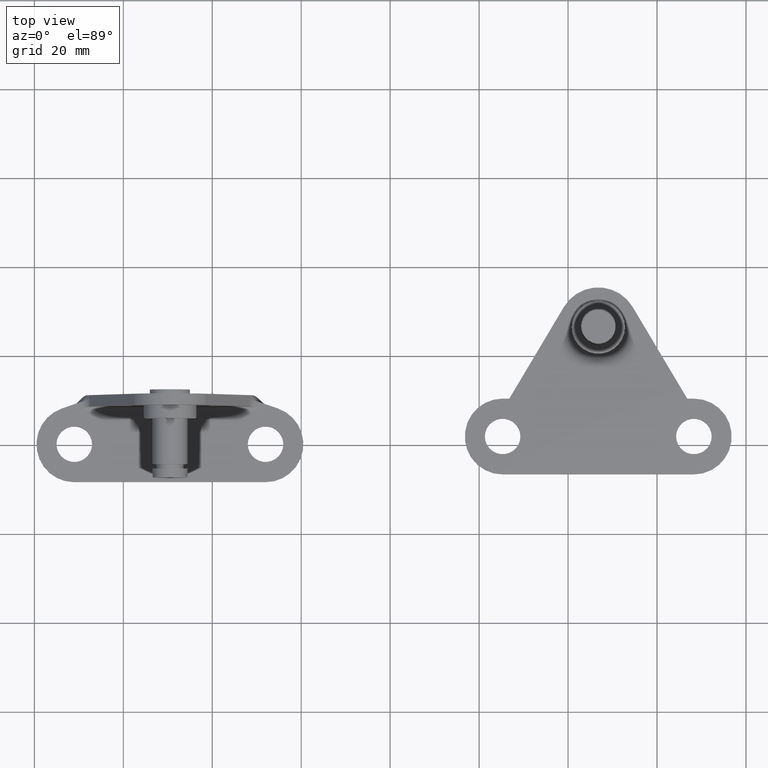
[diagram: clean part render]
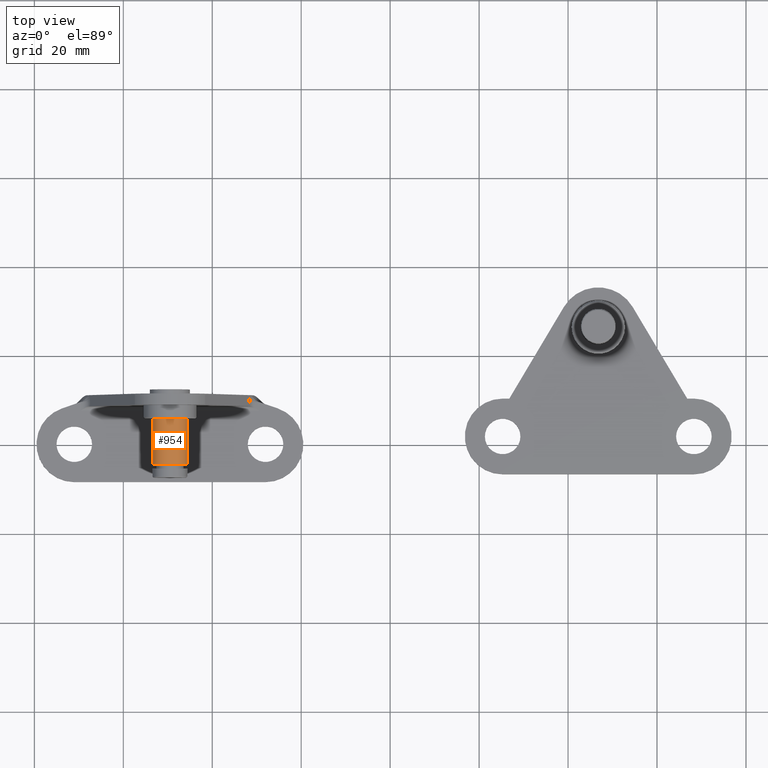
[diagram: same view with one face highlighted and labeled with its STEP entity id]
A machine part, top view. The second image highlights one B-rep face of the part: STEP entity #954.
In plain terms, the highlighted cylindrical surface (bore or boss wall) has radius 3.9 mm, axis along (0, -1, 0).
Its self-contained STEP definition (entity closure, byte-faithful):
#181=CYLINDRICAL_SURFACE('',#1050,3.9);
#209=FACE_BOUND('',#339,.T.);
#262=FACE_OUTER_BOUND('',#338,.T.);
#338=EDGE_LOOP('',(#787));
#339=EDGE_LOOP('',(#788));
#403=CIRCLE('',#1004,3.9);
#429=CIRCLE('',#1045,3.9);
#465=VERTEX_POINT('',#1431);
#510=VERTEX_POINT('',#1862);
#557=EDGE_CURVE('',#465,#465,#403,.T.);
#620=EDGE_CURVE('',#510,#510,#429,.T.);
#787=ORIENTED_EDGE('',*,*,#620,.T.);
#788=ORIENTED_EDGE('',*,*,#557,.F.);
#954=ADVANCED_FACE('',(#262,#209),#181,.T.);
#1004=AXIS2_PLACEMENT_3D('',#1432,#1142,#1143);
#1045=AXIS2_PLACEMENT_3D('',#1863,#1245,#1246);
#1050=AXIS2_PLACEMENT_3D('',#1870,#1255,#1256);
#1142=DIRECTION('center_axis',(-1.8396793052573E-16,1.,0.));
#1143=DIRECTION('ref_axis',(-1.,-3.339016615414E-16,0.));
#1245=DIRECTION('center_axis',(-3.339016615414E-16,1.,0.));
#1246=DIRECTION('ref_axis',(-1.,-3.339016615414E-16,0.));
#1255=DIRECTION('center_axis',(3.339016615414E-16,-1.,0.));
#1256=DIRECTION('ref_axis',(-1.,-3.339016615414E-16,0.));
#1431=CARTESIAN_POINT('',(33.9,5.5,18.));
#1432=CARTESIAN_POINT('Origin',(30.,5.5,18.));
#1862=CARTESIAN_POINT('',(26.1,-4.8,18.));
#1863=CARTESIAN_POINT('Origin',(30.,-4.8,18.));
#1870=CARTESIAN_POINT('Origin',(30.,5.5,18.));